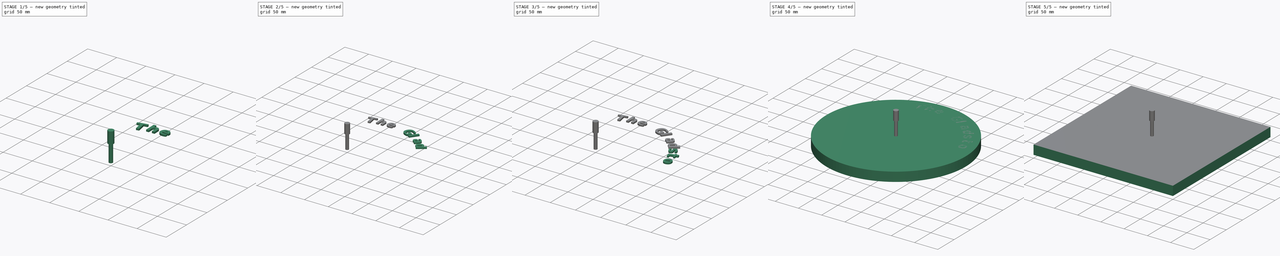
[diagram: build sequence overview — one tinted view per stage of 5, left to right]
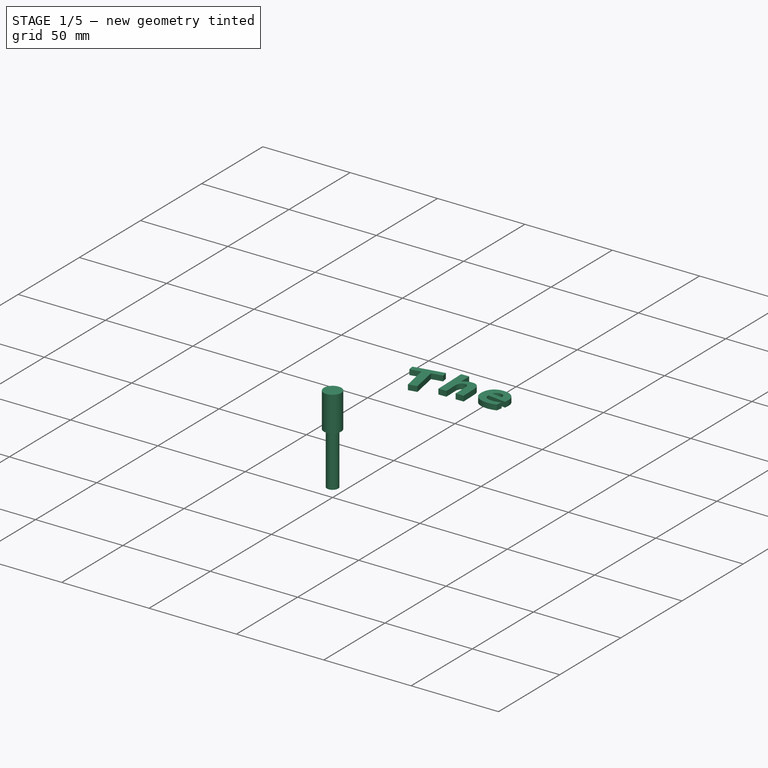
[diagram: stage 1 of 5 — iso view after this stage's code; geometry added in this stage tinted green]
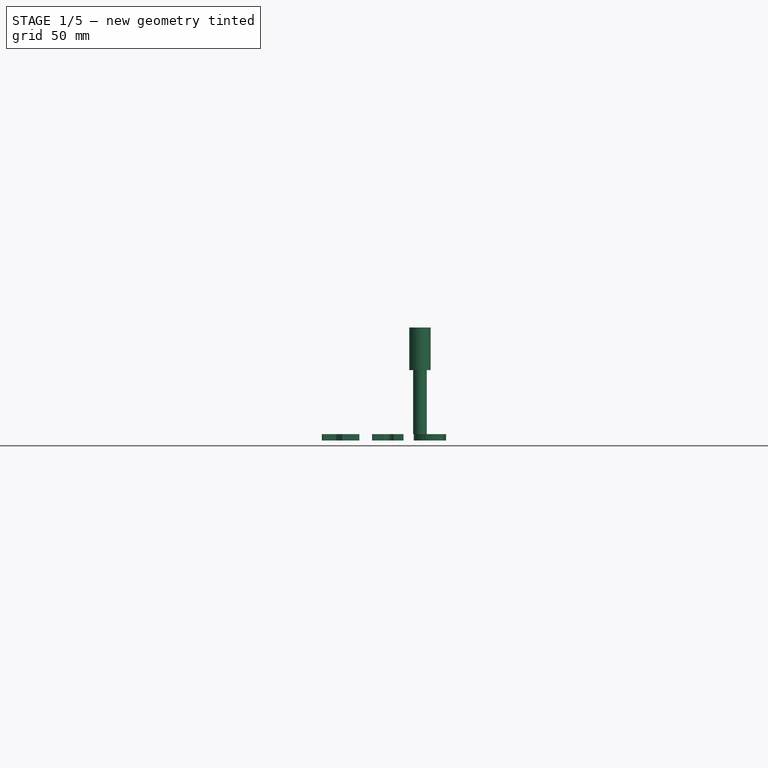
[diagram: stage 1 of 5 — front view after this stage's code; geometry added in this stage tinted green]
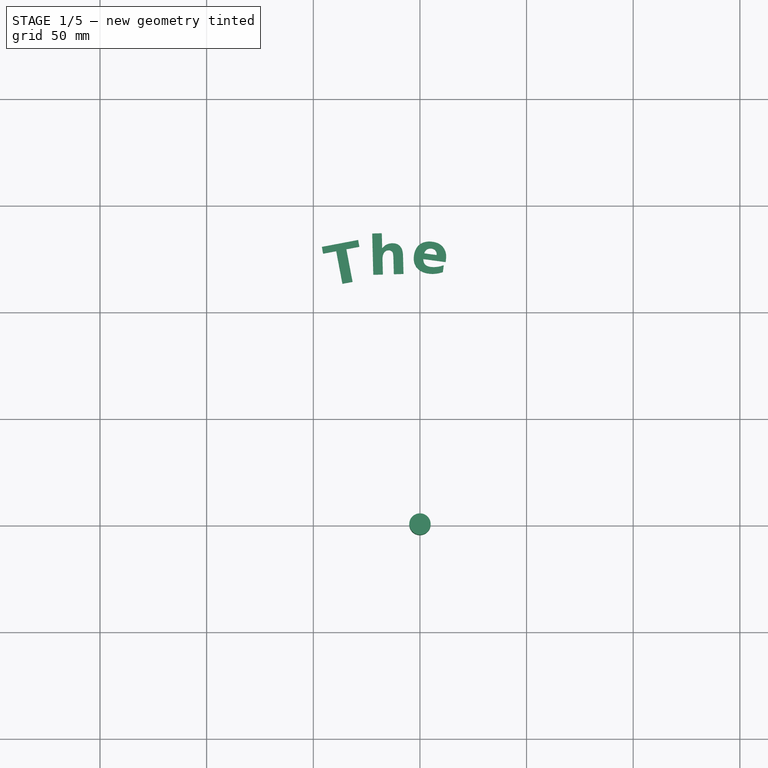
[diagram: stage 1 of 5 — top view after this stage's code; geometry added in this stage tinted green]
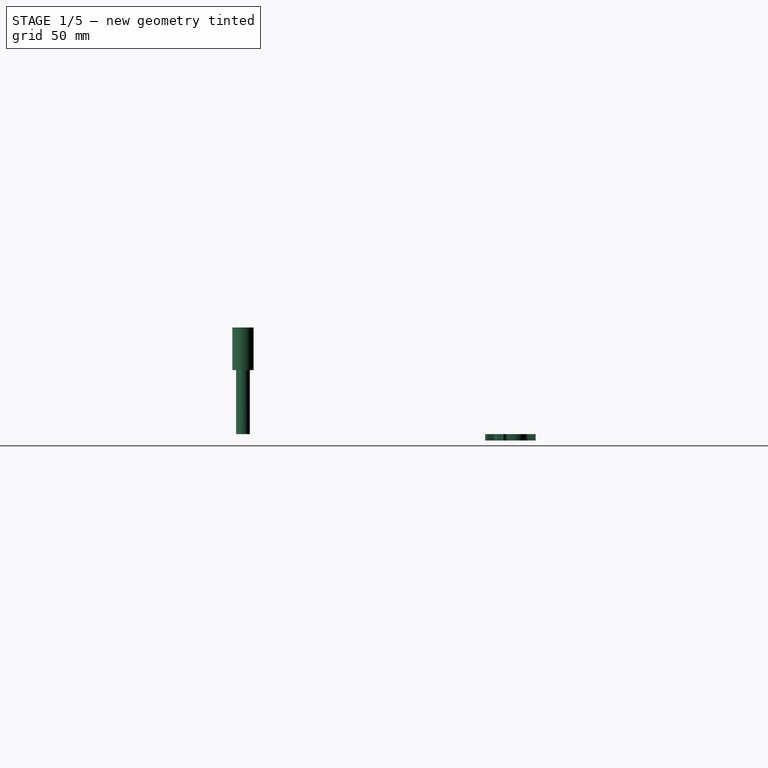
[diagram: stage 1 of 5 — right view after this stage's code; geometry added in this stage tinted green]
FCSTD DOCUMENT  (FreeCAD 0.19RUnknown)
Label: MenShedGear
License: All rights reserved
LicenseURL: http://en.wikipedia.org/wiki/All_rights_reserved
objects: Part::Part2DObjectPython×13, Part::Extrusion×13, Part::FeaturePython×4, Sketcher::SketchObject×3, App::DocumentObjectGroup×3, Path::FeaturePython×3, PartDesign::Pocket×2, PartDesign::Pad×1, PartDesign::Body×1, App::FeaturePython×1, Path::FeatureCompoundPython×1
note: 41 computed .brp shape members not serialized (recipe doc carries the construction recipe); baked Part::Feature solids carry a one-line shape summary decoded from their .brp

FEATURE [Part::Part2DObjectPython] ShapeString009  label=" "  # Draft 2D object (typed FeaturePython)
  FontFile = <path>
  Size = 20
  Tracking = 0
FEATURE [Part::Extrusion] Extrusion009  label=" 001"
  Base = -> ShapeString009
  Dir = (0,0,3)
  DirMode = 0
  FaceMakerClass = Part::FaceMakerBullseye
  LengthFwd = 0
  LengthRev = 0
  Placement = pos=(14.4819,119.274,-3) rot=(0,0,-1;0.295359rad)
  Solid = false
  Symmetric = false
FEATURE [Part::Part2DObjectPython] ShapeString010  label="e002"  # Draft 2D object (typed FeaturePython)
  FontFile = <path>
  Size = 20
  String = e
  Tracking = 0
FEATURE [Part::Extrusion] Extrusion010  label="e003"
  Base = -> ShapeString010
  Dir = (0,0,3)
  DirMode = 0
  FaceMakerClass = Part::FaceMakerBullseye
  LengthFwd = 0
  LengthRev = 0
  Placement = pos=(-4.8386,120.053,-3) rot=(0,0,-1;0.134251rad)
  Solid = false
  Symmetric = false
FEATURE [Part::Part2DObjectPython] ShapeString011  label="h"  # Draft 2D object (typed FeaturePython)
  FontFile = <path>
  Size = 20
  String = h
  Tracking = 0
FEATURE [Part::Extrusion] Extrusion011  label="h001"
  Base = -> ShapeString011
  Dir = (0,0,3)
  DirMode = 0
  FaceMakerClass = Part::FaceMakerBullseye
  LengthFwd = 0
  LengthRev = 0
  Placement = pos=(-24.0338,117.722,-3) rot=(0,0,1;0.026857rad)
  Solid = false
  Symmetric = false
FEATURE [Part::Part2DObjectPython] ShapeString012  label="T"  # Draft 2D object (typed FeaturePython)
  FontFile = <path>
  Size = 20
  String = T
  Tracking = 0
FEATURE [Part::Extrusion] Extrusion012  label="T001"
  Base = -> ShapeString012
  Dir = (0,0,3)
  DirMode = 0
  FaceMakerClass = Part::FaceMakerBullseye
  LengthFwd = 0
  LengthRev = 0
  Placement = pos=(-42.6065,112.342,-3) rot=(0,0,1;0.187965rad)
  Solid = false
  Symmetric = false
FEATURE [Part::FeaturePython] ToolBit001  label="6.4mm Endmill"  # Path/CAM toolbit (typed FeaturePython)
  BitPropertyNames = Chipload | CuttingEdgeHeight | Diameter | Flutes | Length | Material | ShankDiameter
  BitShape = <path>
  Chipload = 0
  CuttingEdgeHeight = 30
  Diameter = 6.4
  File = <userpath>/MensShed/CNCRouter/FreeCAD/Bit/6.4mm_Endmill.fctb
  Flutes = 0
  Length = 50
  Material = 0
  ShankDiameter = 10
  ShapeName = endmill
FEATURE [Path::FeaturePython] __4mm_Endmill  label="6.4mm Endmill001"  # Path/CAM operation (typed FeaturePython)
  HorizFeed = 20
  HorizRapid = 0
  SpindleDir = 0
  SpindleSpeed = 10000
  Tool = -> ToolBit001
  ToolNumber = 1
  VertFeed = 20
  VertRapid = 0
  expr: HorizRapid = SetupSheet.HorizRapid
  expr: VertRapid = SetupSheet.VertRapid
FEATURE [App::DocumentObjectGroup] Tools
  Group = -> [__4mm_Endmill]
FEATURE [Path::FeaturePython] Pocket_Shape  # Path/CAM operation (typed FeaturePython)
  Active = true
  AreaParams:
    Tolerance = 1e-07
    FitArcs = True
    Simplify = False
    CleanDistance = 0.0
    Accuracy = 0.01
    Unit = 1.0
    MinArcPoints = 4
    MaxArcPoints = 100
    ClipperScale = 10000000.0
    Fill = 0
    Coplanar = 0
    Reorient = True
    Outline = False
    Explode = False
    OpenMode = 0
    Deflection = 0.01
    SubjectFill = 0
    ClipFill = 0
    Offset = 0.0
    ExtraPass = 0
    Stepover = 0.0
    LastStepover = 0.0
    JoinType = 0
    EndType = 0
    MiterLimit = 2.0
    RoundPrecision = 0.0
    PocketMode = 1
    ToolRadius = 3.2
    PocketExtraOffset = 0.0
    PocketStepover = 6.4
    PocketLastStepover = 0.0
    FromCenter = True
    Angle = 45.0
    AngleShift = 0.0
    Shift = 0.0
    Thicken = False
    SectionCount = -1
    Stepdown = 1.0
    SectionOffset = 0.0
    SectionTolerance = 1e-06
    SectionMode = 2
    Project = False
  AttemptInverseAngle = true
  Base = -> [Clone,Clone001]
  ClearanceHeight = 5
  CoolantMode = None
  CutMode = 0
  CycleTime = 00:07:37
  EnableRotation = 0
  ExtensionCorners = true
  ExtensionLengthDefault = 3.2
  ExtraOffset = 0
  FinalDepth = -3
  FinishDepth = 1
  InverseAngle = false
  KeepToolDown = false
  LimitDepthToFace = true
  MinTravel = false
  OffsetPattern = 0
  OpFinalDepth = 0
  OpStartDepth = 3
  OpStockZMax = 0
  OpStockZMin = -20
  OpToolDiameter = 6.4
  PathParams = {'orientation': 1, 'feedrate': 20.0, 'feedrate_v': 20.0, 'verbose': True, 'resume_height': 3.0, 'retraction': 5.0, 'return_end': True, 'preamble': False, 'start': Vector (0.0, 0.0, 0.0)}
  ReverseDirection = false
  SafeHeight = 3
  StartAt = 0
  StartDepth = 0
  StartPoint = (0,0,0)
  StepDown = 3
  StepOver = 100
  ToolController = -> __4mm_Endmill
  UseOutline = false
  UseStartPoint = false
  ZigZagAngle = 45
  expr: ExtensionLengthDefault = OpToolDiameter / 2
  expr: ClearanceHeight = OpStockZMax + SetupSheet.ClearanceHeightOffset
  expr: SafeHeight = OpStockZMax + SetupSheet.SafeHeightOffset
  expr: StepDown = 3
  expr: FinalDepth = -3
  expr: StartDepth = 0
FEATURE [Path::FeatureCompoundPython] Operations  # Path/CAM operation (typed FeaturePython)
  Group = -> [Pocket_Shape]
  UsePlacements = false
FEATURE [Path::FeaturePython] Job  # Path/CAM operation (typed FeaturePython)
  CycleTime = 00:07:37
  Fixtures = G54
  GeometryTolerance = 0.01
  Model = -> Model
  Operations = -> Operations
  OrderOutputBy = 0
  PostProcessor = 1
  PostProcessorOutputFile = %D/%d.ngc
  SetupSheet = -> SetupSheet
  SplitOutput = false
  Stock = -> Stock001
  Tools = -> Tools
note: 14 file-system paths scrubbed to <path> (originals preserved in the JSON sidecar)
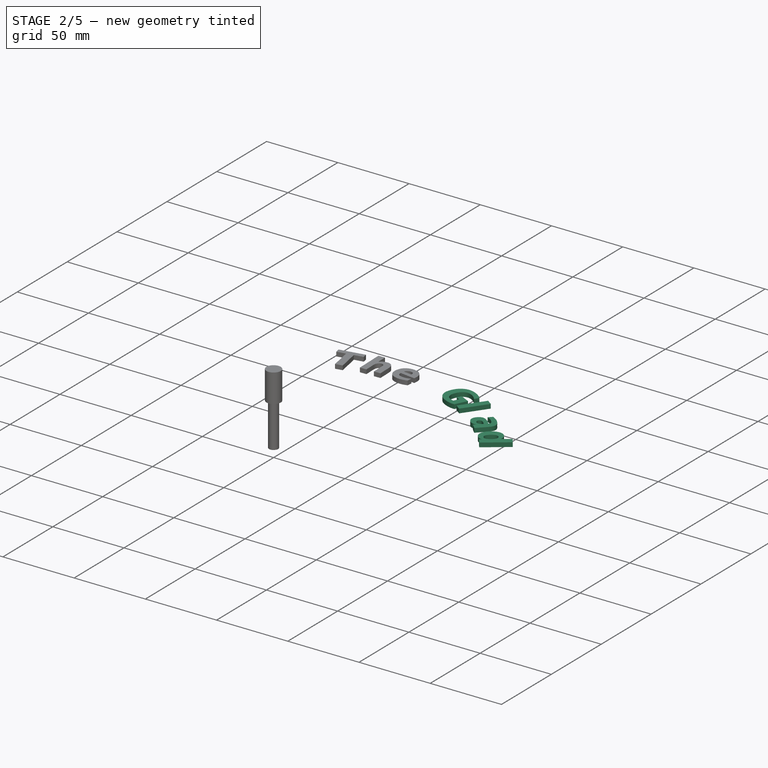
[diagram: stage 2 of 5 — iso view after this stage's code; geometry added in this stage tinted green]
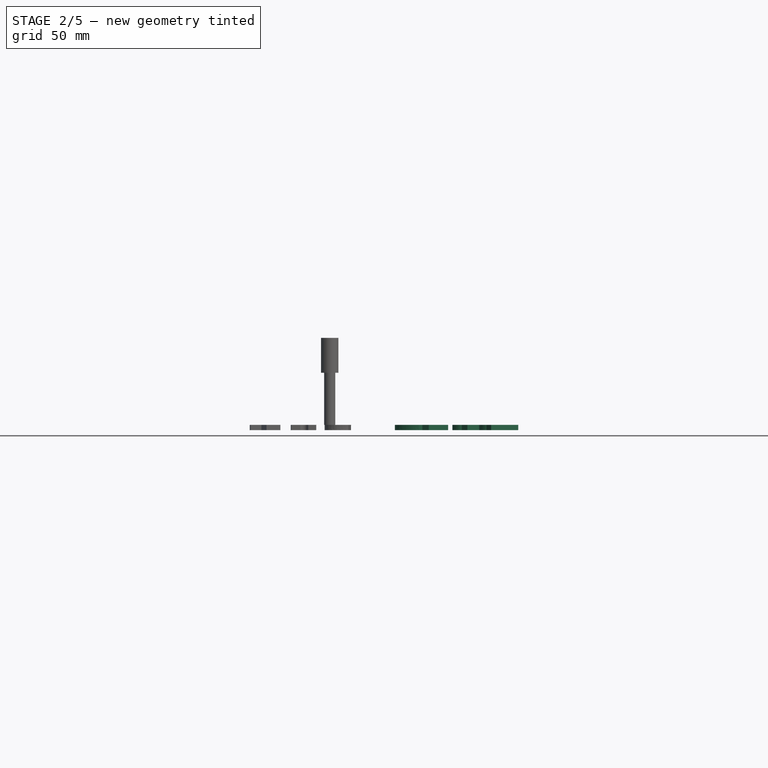
[diagram: stage 2 of 5 — front view after this stage's code; geometry added in this stage tinted green]
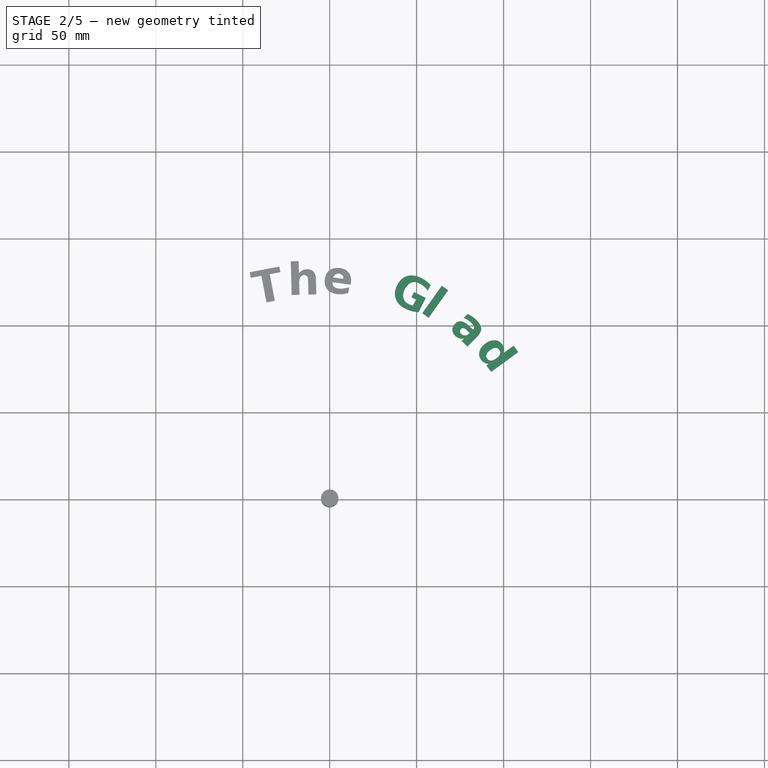
[diagram: stage 2 of 5 — top view after this stage's code; geometry added in this stage tinted green]
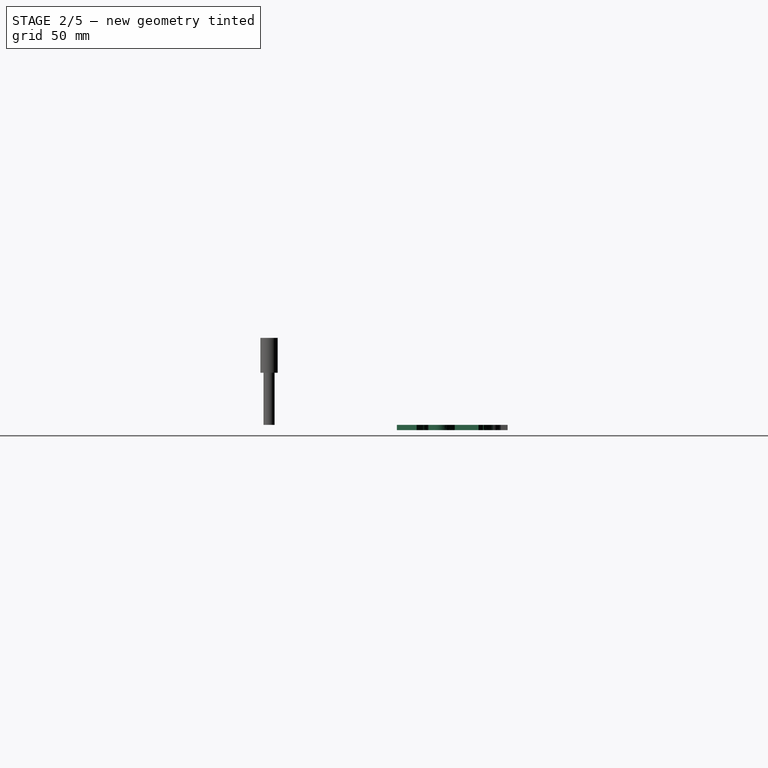
[diagram: stage 2 of 5 — right view after this stage's code; geometry added in this stage tinted green]
FEATURE [Part::Part2DObjectPython] ShapeString005  label="d"  # Draft 2D object (typed FeaturePython)
  FontFile = <path>
  Size = 20
  String = d
  Tracking = 0
FEATURE [Part::Extrusion] Extrusion005  label="d001"
  Base = -> ShapeString005
  Dir = (0,0,3)
  DirMode = 0
  FaceMakerClass = Part::FaceMakerBullseye
  LengthFwd = 0
  LengthRev = 0
  Placement = pos=(83.2306,86.6527,-3) rot=(0,0,-1;0.93979rad)
  Solid = false
  Symmetric = false
FEATURE [Part::Part2DObjectPython] ShapeString006  label="a"  # Draft 2D object (typed FeaturePython)
  FontFile = <path>
  Size = 20
  String = a
  Tracking = 0
FEATURE [Part::Extrusion] Extrusion006  label="a001"
  Base = -> ShapeString006
  Dir = (0,0,3)
  DirMode = 0
  FaceMakerClass = Part::FaceMakerBullseye
  LengthFwd = 0
  LengthRev = 0
  Placement = pos=(68.2527,98.8817,-3) rot=(0,0,-1;0.778682rad)
  Solid = false
  Symmetric = false
FEATURE [Part::Part2DObjectPython] ShapeString007  label="l"  # Draft 2D object (typed FeaturePython)
  FontFile = <path>
  Size = 20
  String = l
  Tracking = 0
FEATURE [Part::Extrusion] Extrusion007  label="l001"
  Base = -> ShapeString007
  Dir = (0,0,3)
  DirMode = 0
  FaceMakerClass = Part::FaceMakerBullseye
  LengthFwd = 0
  LengthRev = 0
  Placement = pos=(51.507,108.55,-3) rot=(0,0,-1;0.617574rad)
  Solid = false
  Symmetric = false
FEATURE [Part::Part2DObjectPython] ShapeString008  label="G"  # Draft 2D object (typed FeaturePython)
  FontFile = <path>
  Size = 20
  String = G
  Tracking = 0
FEATURE [Part::Extrusion] Extrusion008  label="G001"
  Base = -> ShapeString008
  Dir = (0,0,3)
  DirMode = 0
  FaceMakerClass = Part::FaceMakerBullseye
  LengthFwd = 0
  LengthRev = 0
  Placement = pos=(33.4273,115.406,-3) rot=(0,0,-1;0.456466rad)
  Solid = false
  Symmetric = false
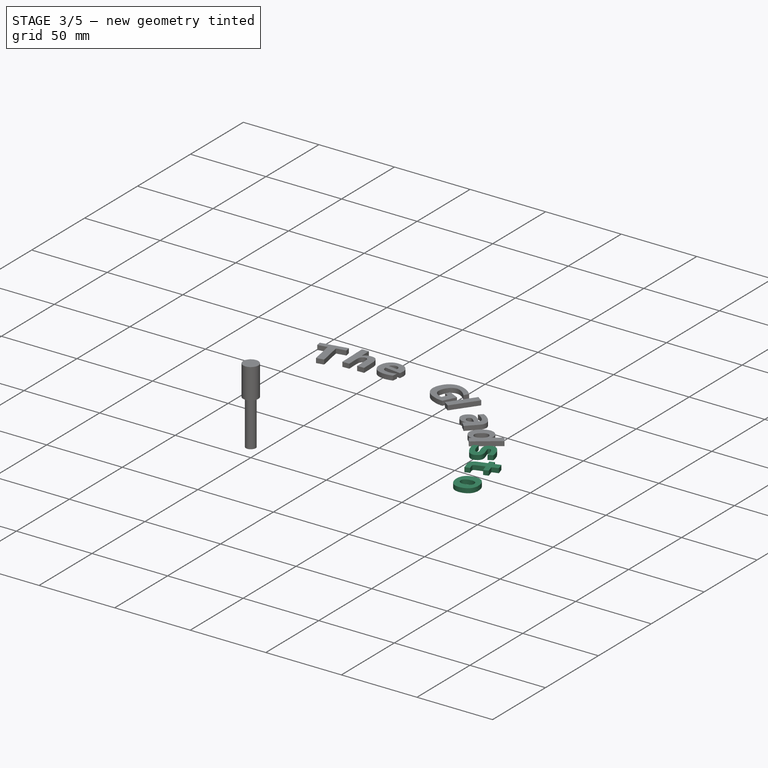
[diagram: stage 3 of 5 — iso view after this stage's code; geometry added in this stage tinted green]
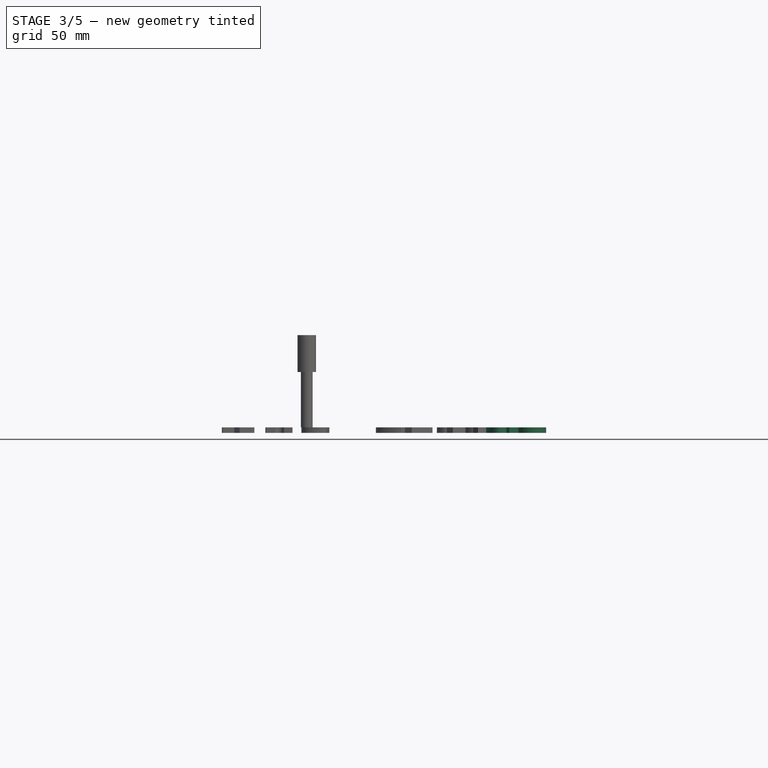
[diagram: stage 3 of 5 — front view after this stage's code; geometry added in this stage tinted green]
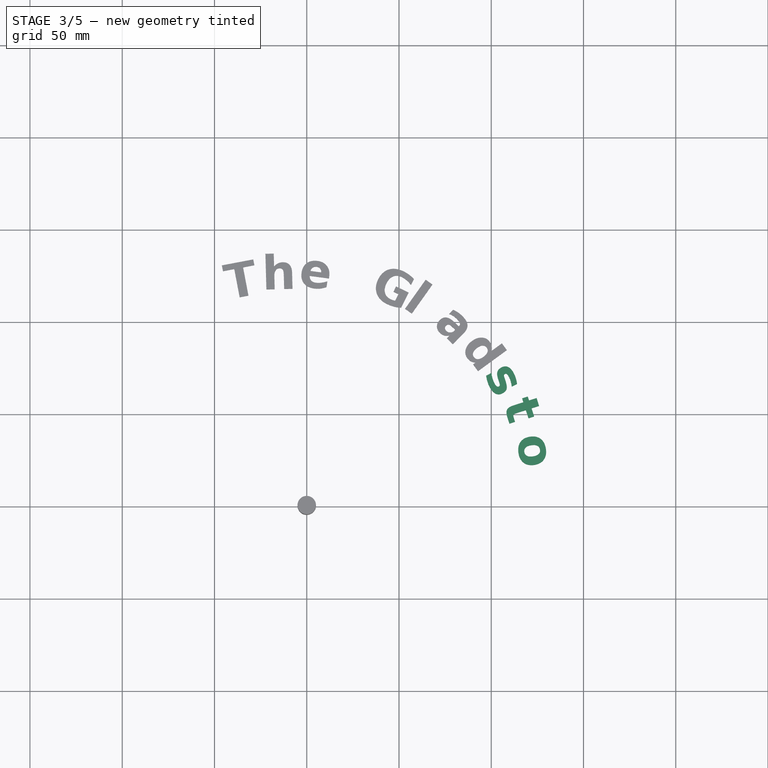
[diagram: stage 3 of 5 — top view after this stage's code; geometry added in this stage tinted green]
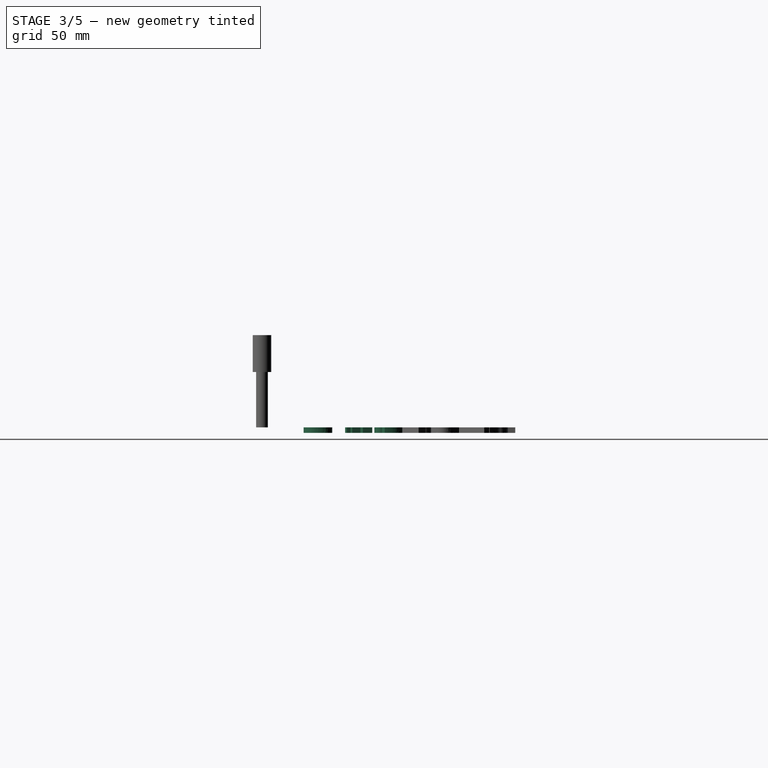
[diagram: stage 3 of 5 — right view after this stage's code; geometry added in this stage tinted green]
FEATURE [Part::Part2DObjectPython] ShapeString002  label="o"  # Draft 2D object (typed FeaturePython)
  FontFile = <path>
  Size = 20
  String = o
  Tracking = 0
FEATURE [Part::Extrusion] Extrusion002  label="o001"
  Base = -> ShapeString002
  Dir = (0,0,3)
  DirMode = 0
  FaceMakerClass = Part::FaceMakerBullseye
  LengthFwd = 0
  LengthRev = 0
  Placement = pos=(113.967,38.0478,-3) rot=(0,0,-1;1.42311rad)
  Solid = false
  Symmetric = false
FEATURE [Part::Part2DObjectPython] ShapeString003  label="t"  # Draft 2D object (typed FeaturePython)
  FontFile = <path>
  Size = 20
  String = t
  Tracking = 0
FEATURE [Part::Extrusion] Extrusion003  label="t001"
  Base = -> ShapeString003
  Dir = (0,0,3)
  DirMode = 0
  FaceMakerClass = Part::FaceMakerBullseye
  LengthFwd = 0
  LengthRev = 0
  Placement = pos=(106.387,55.8367,-3) rot=(0,0,-1;1.26201rad)
  Solid = false
  Symmetric = false
FEATURE [Part::Part2DObjectPython] ShapeString004  label="s"  # Draft 2D object (typed FeaturePython)
  FontFile = <path>
  Size = 20
  String = s
  Tracking = 0
FEATURE [Part::Extrusion] Extrusion004  label="s001"
  Base = -> ShapeString004
  Dir = (0,0,3)
  DirMode = 0
  FaceMakerClass = Part::FaceMakerBullseye
  LengthFwd = 0
  LengthRev = 0
  Placement = pos=(96.0529,72.1794,-3) rot=(0,0,-1;1.1009rad)
  Solid = false
  Symmetric = false
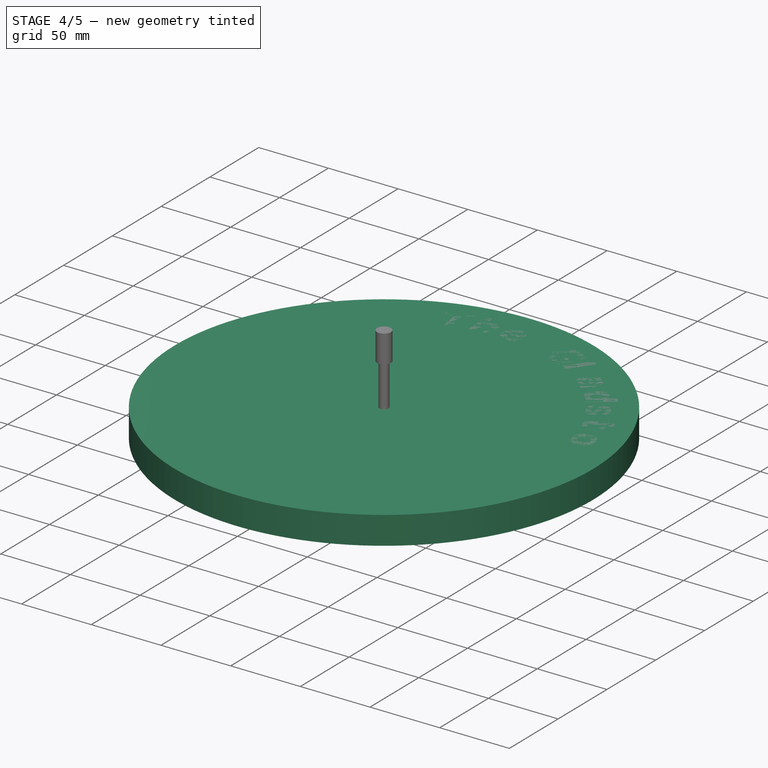
[diagram: stage 4 of 5 — iso view after this stage's code; geometry added in this stage tinted green]
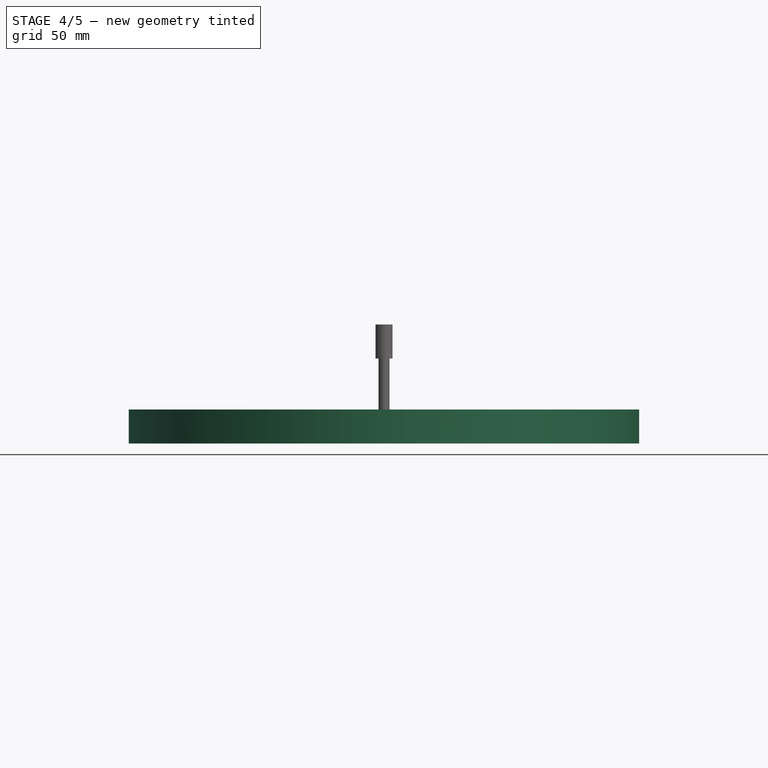
[diagram: stage 4 of 5 — front view after this stage's code; geometry added in this stage tinted green]
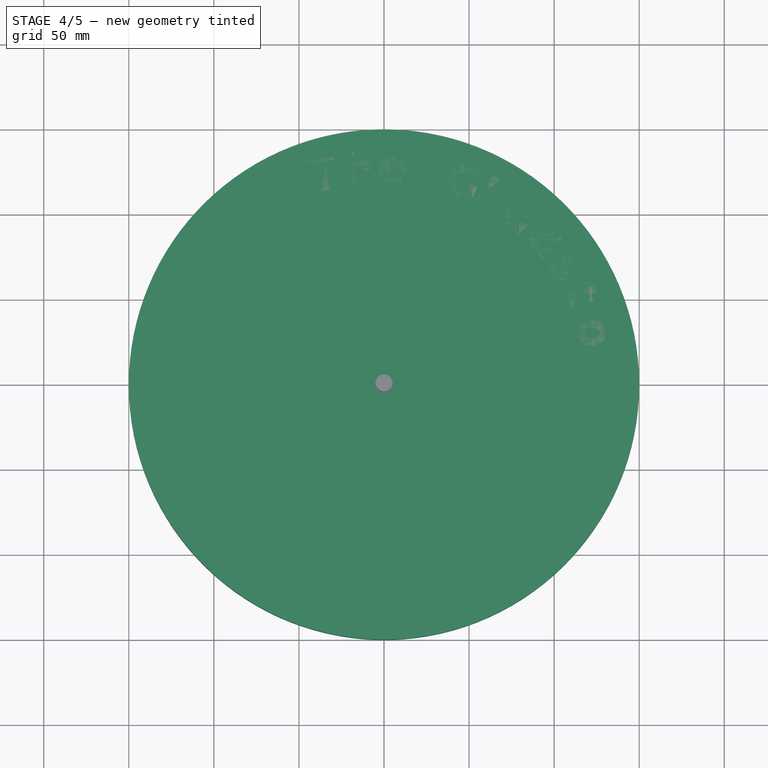
[diagram: stage 4 of 5 — top view after this stage's code; geometry added in this stage tinted green]
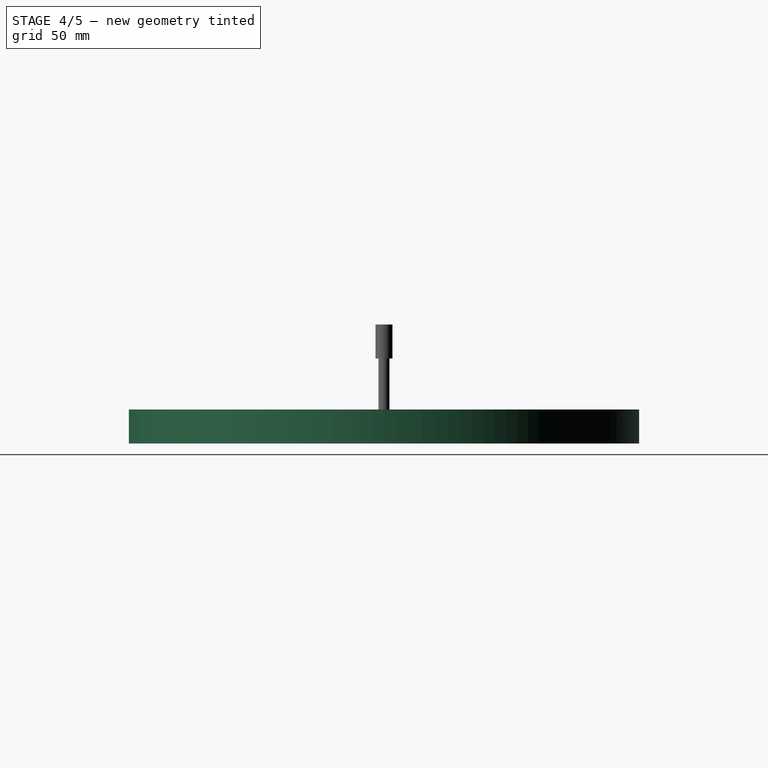
[diagram: stage 4 of 5 — right view after this stage's code; geometry added in this stage tinted green]
FEATURE [Sketcher::SketchObject] Sketch
  FullyConstrained = true
  MapMode = 5
  Support = -> [XY_Plane]
  sketch-geometry (1):
    g0: Circle CenterX=0 CenterY=0 CenterZ=0 NormalX=0 NormalY=0 NormalZ=1 AngleXU=0 Radius=150
  constraints (2):
    c: Diameter(g0) = 300
    c: Coincident(g0,g-1)
FEATURE [PartDesign::Pad] Pad
  Direction = (1,1,1)
  Length = 20
  Length2 = 100
  Profile = -> Sketch
  Reversed = true
  Type = 0
FEATURE [PartDesign::Body] Body
  Group = -> [Sketch,Pad,Sketch001,Pocket,Sketch002,Pocket001]
  Origin = -> Origin
  Tip = -> Pocket001
FEATURE [Part::Part2DObjectPython] ShapeString  label="e"  # Draft 2D object (typed FeaturePython)
  FontFile = <path>
  Size = 20
  String = e
  Tracking = 0
FEATURE [Part::Extrusion] Extrusion  label="e001"
  Base = -> ShapeString
  Dir = (0,0,3)
  DirMode = 0
  FaceMakerClass = Part::FaceMakerBullseye
  LengthFwd = 0
  LengthRev = 0
  Placement = pos=(120.15,0,-3) rot=(0,0,-1;1.74533rad)
  Solid = false
  Symmetric = false
FEATURE [Part::Part2DObjectPython] ShapeString001  label="n"  # Draft 2D object (typed FeaturePython)
  FontFile = <path>
  Size = 20
  String = n
  Tracking = 0
FEATURE [Part::Extrusion] Extrusion001  label="n001"
  Base = -> ShapeString001
  Dir = (0,0,3)
  DirMode = 0
  FaceMakerClass = Part::FaceMakerBullseye
  LengthFwd = 0
  LengthRev = 0
  Placement = pos=(118.594,19.2735,-3) rot=(0,0,-1;1.58422rad)
  Solid = false
  Symmetric = false
FEATURE [Part::FeaturePython] Clone001  label="Model-FcString_The_Gladst"  # Draft clone (typed FeaturePython)
  AttacherType = Attacher::AttachEngine3D
  Fuse = false
  Objects = -> [FcString_The_Gladst]
  PathResource = Model
  Scale = (1,1,1)
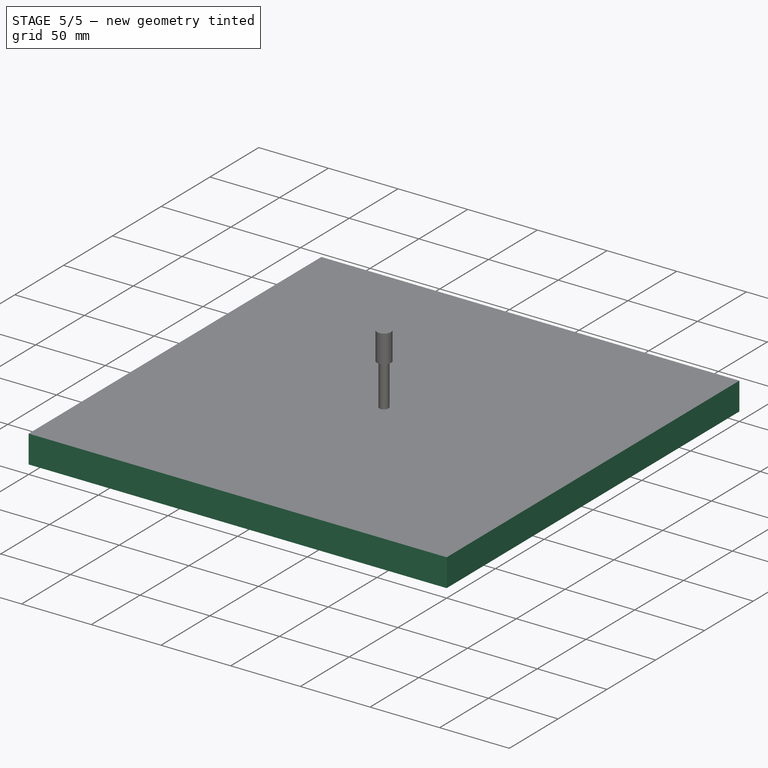
[diagram: stage 5 of 5 — iso view after this stage's code; geometry added in this stage tinted green]
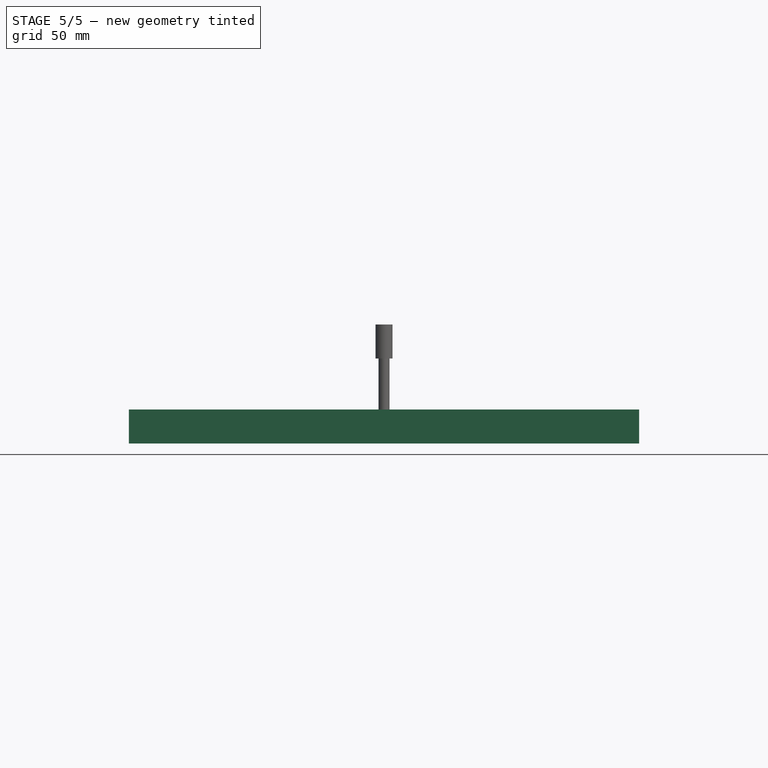
[diagram: stage 5 of 5 — front view after this stage's code; geometry added in this stage tinted green]
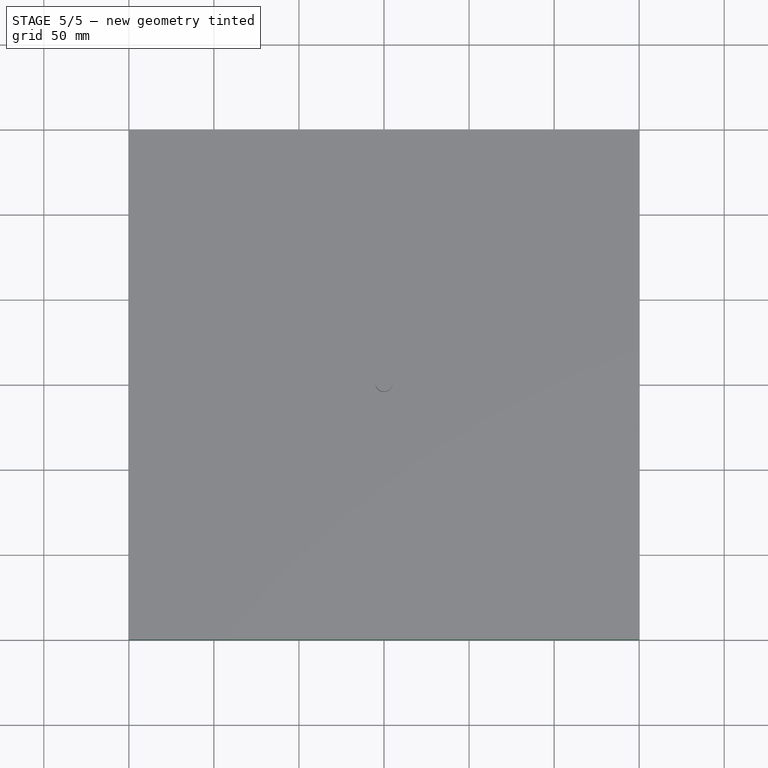
[diagram: stage 5 of 5 — top view after this stage's code; geometry added in this stage tinted green]
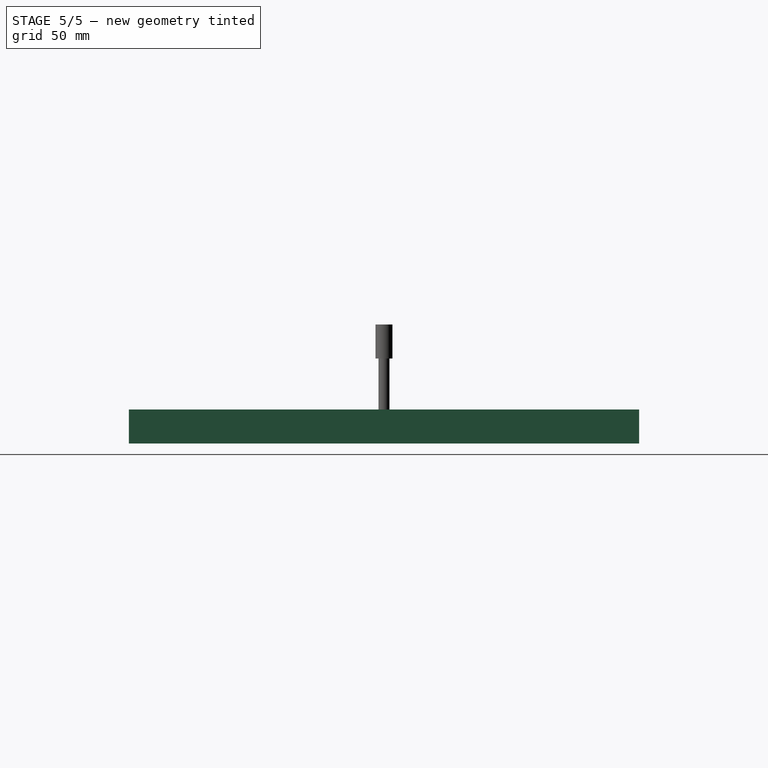
[diagram: stage 5 of 5 — right view after this stage's code; geometry added in this stage tinted green]
FEATURE [Sketcher::SketchObject] Sketch001
  FullyConstrained = true
  MapMode = 5
  Support = -> [XY_Plane]
  sketch-geometry (2):
    g0: Circle CenterX=0 CenterY=0 CenterZ=0 NormalX=0 NormalY=0 NormalZ=1 AngleXU=0 Radius=145
    g1: Circle CenterX=0 CenterY=0 CenterZ=0 NormalX=0 NormalY=0 NormalZ=1 AngleXU=0 Radius=110.45
  constraints (4):
    c: Diameter(g0) = 290
    c: Diameter(g1) = 220.9
    c: Coincident(g1,g-1)
    c: Coincident(g0,g1)
FEATURE [PartDesign::Pocket] Pocket  label="OuterPocket"
  BaseFeature = -> Pad
  Length = 3
  Length2 = 100
  Profile = -> Sketch001
  Type = 0
FEATURE [Sketcher::SketchObject] Sketch002
  FullyConstrained = true
  MapMode = 5
  Support = -> [XY_Plane]
  sketch-geometry (1):
    g0: Circle CenterX=0 CenterY=0 CenterZ=0 NormalX=0 NormalY=0 NormalZ=1 AngleXU=0 Radius=105
  constraints (2):
    c: Diameter(g0) = 210
    c: Coincident(g0,g-1)
FEATURE [PartDesign::Pocket] Pocket001
  BaseFeature = -> Pocket
  Length = 3
  Length2 = 100
  Profile = -> Sketch002
  Type = 0
FEATURE [App::DocumentObjectGroup] FcString_The_Gladst
  Group = -> [ShapeString,Extrusion,ShapeString001,Extrusion001,ShapeString002,Extrusion002,ShapeString003,Extrusion003,ShapeString004,Extrusion004,ShapeString005,Extrusion005,ShapeString006,Extrusion006,ShapeString007,Extrusion007,ShapeString008,Extrusion008,ShapeString009,Extrusion009,ShapeString010,Extrusion010,ShapeString011,Extrusion011,ShapeString012,Extrusion012]
FEATURE [App::FeaturePython] SetupSheet  # Path/CAM operation (typed FeaturePython)
  ClearanceHeightExpression = OpStockZMax+SetupSheet.ClearanceHeightOffset
  ClearanceHeightOffset = 5
  CoolantMode = 0
  CoolantModes = None | Flood | Mist
  FinalDepthExpression = OpFinalDepth
  HorizRapid = 0
  SafeHeightExpression = OpStockZMax+SetupSheet.SafeHeightOffset
  SafeHeightOffset = 3
  StartDepthExpression = OpStartDepth
  StepDownExpression = OpToolDiameter
  VertRapid = 0
FEATURE [Part::FeaturePython] Clone  label="Model-Body"  # Draft clone (typed FeaturePython)
  AttacherType = Attacher::AttachEngine3D
  Fuse = false
  Objects = -> [Body]
  PathResource = Model
  Scale = (1,1,1)
FEATURE [App::DocumentObjectGroup] Model
  Group = -> [Clone,Clone001]
FEATURE [Part::FeaturePython] Stock001  # WARN: FeaturePython — macro-defined, semantics opaque (R4)
  Height = 20
  Length = 300
  Placement = pos=(-150,-150,-20) rot=(0,0,1;0rad)
  StockType = CreateBox
  Width = 300
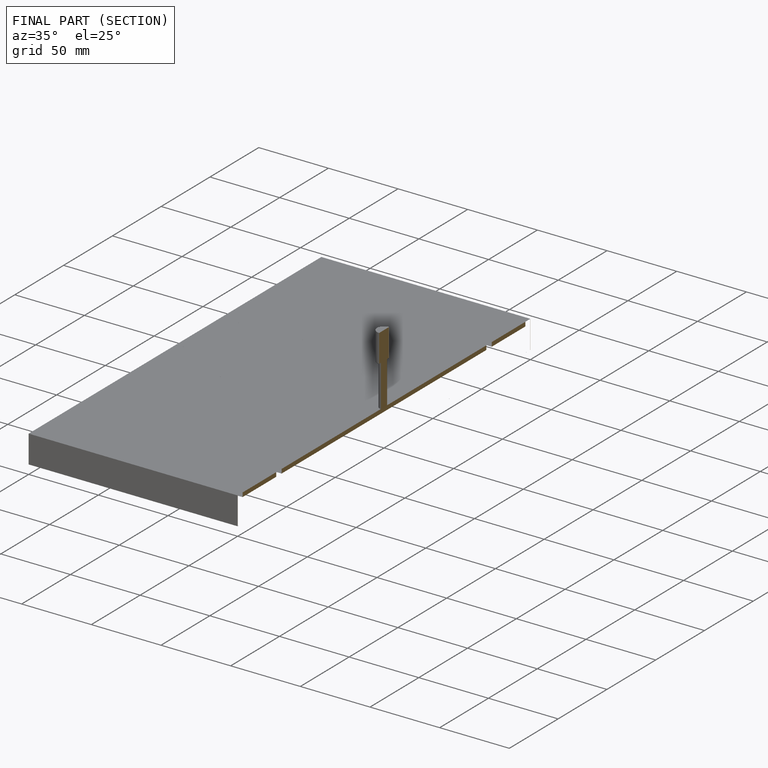
[diagram: finished part — half-section view (interior)]
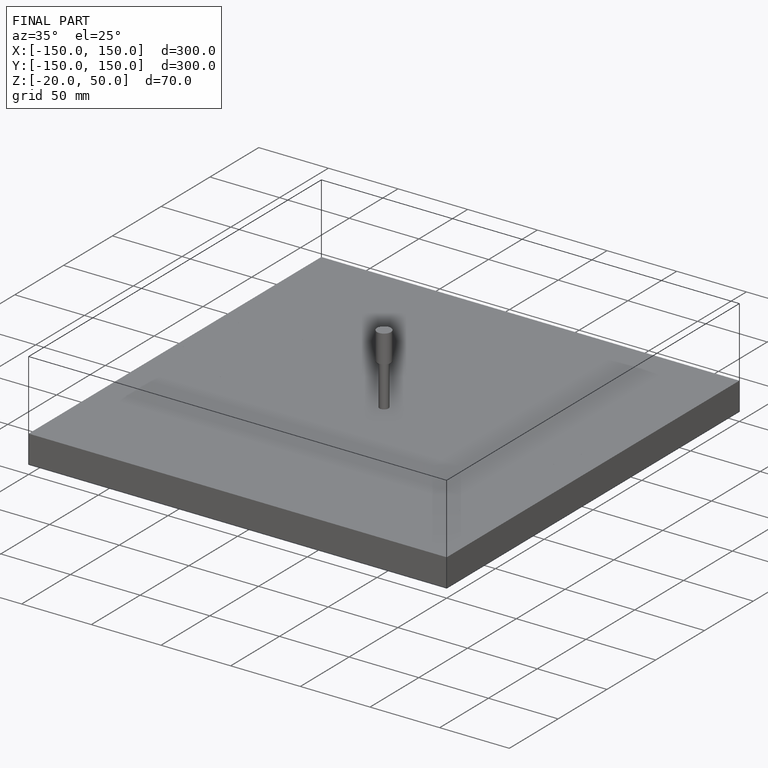
[diagram: finished part — iso view with bounding-box wireframe]
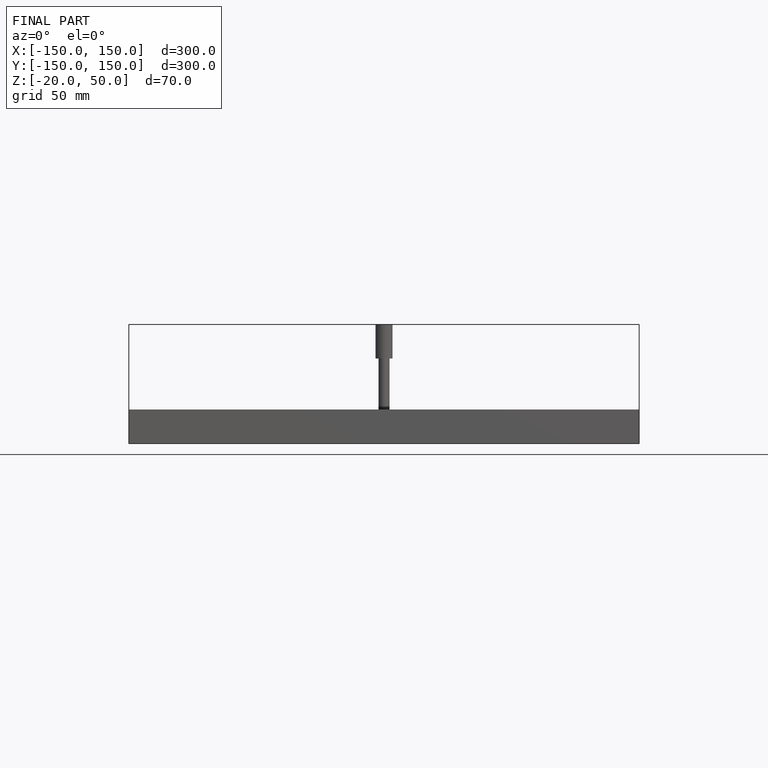
[diagram: finished part — front view with bounding-box wireframe]
